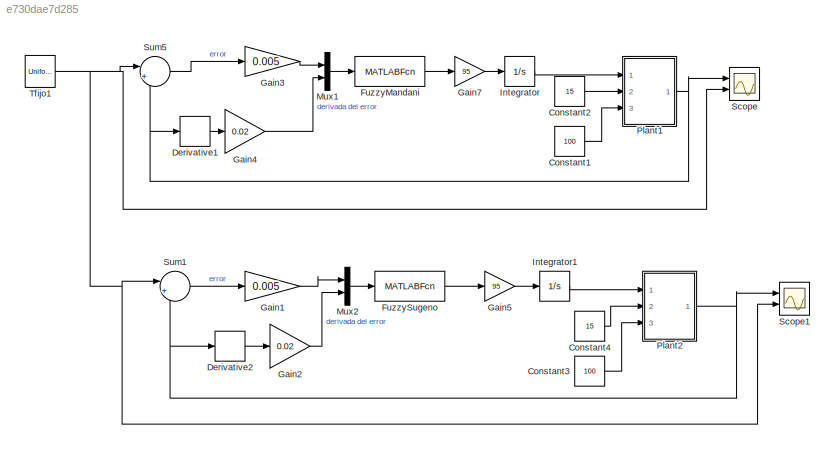
MODEL slx_e730dae7d285
KIND model
CONFIG AbsTol = auto
CONFIG FixedStep = auto
CONFIG MaxStep = auto
CONFIG MinStep = auto
CONFIG RelTol = 1e-3
CONFIG SampleTimeConstraint = Unconstrained
CONFIG Solver = VariableStepAuto
CONFIG SolverMode = Auto
CONFIG SolverName = VariableStepAuto
CONFIG StartTime = 0.0
CONFIG StopTime = 500
BLOCK [Constant] Constant1
  Value = 100
BLOCK [Constant] Constant2
  Value = 15
BLOCK [Constant] Constant3
  Value = 100
BLOCK [Constant] Constant4
  Value = 15
BLOCK [Derivative] Derivative1
BLOCK [Derivative] Derivative2
BLOCK [MATLABFcn] FuzzyMandani
  MATLABFcn = evalfis(u,Bioreactor2FuzzyMadani)
  OutputDimensions = 1
  Ports = [1, 1]
BLOCK [MATLABFcn] FuzzySugeno
  MATLABFcn = evalfis(u,Bioreactor2FuzzySugeno)
  OutputDimensions = 1
  Ports = [1, 1]
BLOCK [Gain] Gain1
  Gain = 0.005
  OutDataTypeStr = Inherit: Inherit via internal rule
  ParamDataTypeStr = Inherit: Inherit via internal rule
  SaturateOnIntegerOverflow = off
BLOCK [Gain] Gain2
  Gain = 0.02
  OutDataTypeStr = Inherit: Inherit via internal rule
  ParamDataTypeStr = Inherit: Inherit via internal rule
  SaturateOnIntegerOverflow = off
BLOCK [Gain] Gain3
  Gain = 0.005
  OutDataTypeStr = Inherit: Inherit via internal rule
  ParamDataTypeStr = Inherit: Inherit via internal rule
  SaturateOnIntegerOverflow = off
BLOCK [Gain] Gain4
  Gain = 0.02
  OutDataTypeStr = Inherit: Inherit via internal rule
  ParamDataTypeStr = Inherit: Inherit via internal rule
  SaturateOnIntegerOverflow = off
BLOCK [Gain] Gain5
  Gain = 95
  OutDataTypeStr = Inherit: Inherit via internal rule
  ParamDataTypeStr = Inherit: Inherit via internal rule
  SaturateOnIntegerOverflow = off
BLOCK [Gain] Gain7
  Gain = 95
  OutDataTypeStr = Inherit: Inherit via internal rule
  ParamDataTypeStr = Inherit: Inherit via internal rule
  SaturateOnIntegerOverflow = off
BLOCK [Integrator] Integrator
  Ports = [1, 1]
BLOCK [Integrator] Integrator1
  Ports = [1, 1]
BLOCK [Mux] Mux1
  DisplayOption = bar
  Inputs = 2
  Ports = [2, 1]
BLOCK [Mux] Mux2
  DisplayOption = bar
  Inputs = 2
  Ports = [2, 1]
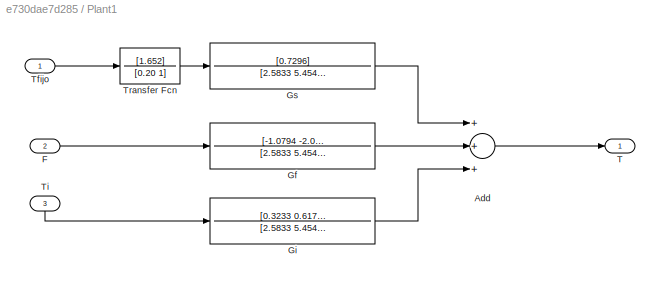
BLOCK [SubSystem] Plant1
  Ports = [3, 1]
  RequestExecContextInheritance = off
  Variant = off
BLOCK [Sum] Plant1/Add
  InputSameDT = off
  Inputs = +++
  OutDataTypeStr = Inherit: Inherit via internal rule
  Ports = [3, 1]
  SaturateOnIntegerOverflow = off
BLOCK [Inport] Plant1/F
  IconDisplay = Port number
  Port = 2
BLOCK [TransferFcn] Plant1/Gf
  Denominator = [2.5833 5.4540 0.6170]
  Numerator = [-1.0794 -2.0600]
BLOCK [TransferFcn] Plant1/Gi
  Denominator = [2.5833 5.4540  0.6170]
  Numerator = [0.3233 0.6170]
BLOCK [TransferFcn] Plant1/Gs
  Denominator = [2.5833 5.4540  0.6170]
  Numerator = [0.7296]
BLOCK [Outport] Plant1/T
  IconDisplay = Port number
BLOCK [Inport] Plant1/Tfijo
  IconDisplay = Port number
BLOCK [Inport] Plant1/Ti
  IconDisplay = Port number
  Port = 3
BLOCK [TransferFcn] Plant1/Transfer Fcn
  Denominator = [0.20 1]
  Numerator = [1.652]
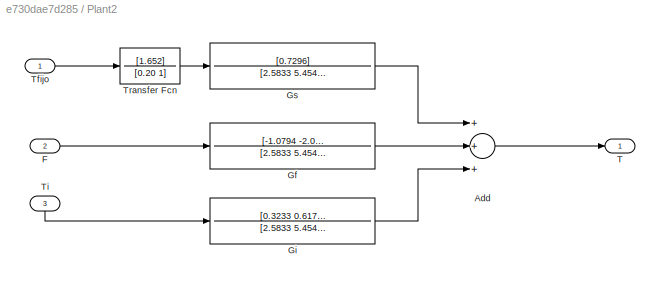
BLOCK [SubSystem] Plant2
  Ports = [3, 1]
  RequestExecContextInheritance = off
  Variant = off
BLOCK [Sum] Plant2/Add
  InputSameDT = off
  Inputs = +++
  OutDataTypeStr = Inherit: Inherit via internal rule
  Ports = [3, 1]
  SaturateOnIntegerOverflow = off
BLOCK [Inport] Plant2/F
  IconDisplay = Port number
  Port = 2
BLOCK [TransferFcn] Plant2/Gf
  Denominator = [2.5833 5.4540 0.6170]
  Numerator = [-1.0794 -2.0600]
BLOCK [TransferFcn] Plant2/Gi
  Denominator = [2.5833 5.4540  0.6170]
  Numerator = [0.3233 0.6170]
BLOCK [TransferFcn] Plant2/Gs
  Denominator = [2.5833 5.4540  0.6170]
  Numerator = [0.7296]
BLOCK [Outport] Plant2/T
  IconDisplay = Port number
BLOCK [Inport] Plant2/Tfijo
  IconDisplay = Port number
BLOCK [Inport] Plant2/Ti
  IconDisplay = Port number
  Port = 3
BLOCK [TransferFcn] Plant2/Transfer Fcn
  Denominator = [0.20 1]
  Numerator = [1.652]
BLOCK [Scope] Scope
  NumInputPorts = 2
  Ports = [2]
  ScopeSpecificationString = Simulink.scopes.TimeScopeBlockCfg('CurrentConfiguration', extmgr.ConfigurationSet(extmgr.Configuration('Core','General UI',true),extmgr.Configuration('Core','Source UI',true),extmgr.Configuration('Sources','WiredSimulink',true,'DataLoggingVariableName','ScopeData1'),extmgr.Configuration('Visuals','Time Domain',true,'SerializedDisplays',{struct('MinYLimReal','-19.64648','MaxYLimReal','176.81834','Y...<+1536ch>
BLOCK [Scope] Scope1
  NumInputPorts = 2
  Ports = [2]
  ScopeSpecificationString = Simulink.scopes.TimeScopeBlockCfg('CurrentConfiguration', extmgr.ConfigurationSet(extmgr.Configuration('Core','General UI',true),extmgr.Configuration('Core','Source UI',true),extmgr.Configuration('Sources','WiredSimulink',true,'DataLoggingVariableName','ScopeData1'),extmgr.Configuration('Visuals','Time Domain',true,'SerializedDisplays',{struct('MinYLimReal','-19.64432','MaxYLimReal','176.79891','Y...<+1454ch>
BLOCK [Sum] Sum1
  IconShape = round
  InputSameDT = off
  Inputs = |+-
  OutDataTypeStr = Inherit: Inherit via internal rule
  Ports = [2, 1]
  SaturateOnIntegerOverflow = off
BLOCK [Sum] Sum5
  IconShape = round
  InputSameDT = off
  Inputs = |+-
  OutDataTypeStr = Inherit: Inherit via internal rule
  Ports = [2, 1]
  SaturateOnIntegerOverflow = off
BLOCK [UniformRandomNumber] Tfijo1
  Maximum = 170
  Minimum = 130
  SampleTime = 50
LINE Constant1:1 -> Plant1:3
LINE Constant2:1 -> Plant1:2
LINE Constant3:1 -> Plant2:3
LINE Constant4:1 -> Plant2:2
LINE Derivative1:1 -> Gain4:1
LINE Derivative2:1 -> Gain2:1
LINE FuzzyMandani:1 -> Gain7:1
LINE FuzzySugeno:1 -> Gain5:1
LINE Gain1:1 -> Mux2:1
LINE Gain2:1 -> Mux2:2
LINE Gain3:1 -> Mux1:1
LINE Gain4:1 -> Mux1:2
LINE Gain5:1 -> Integrator1:1
LINE Gain7:1 -> Integrator:1
LINE Integrator1:1 -> Plant2:1
LINE Integrator:1 -> Plant1:1
LINE Mux1:1 -> FuzzyMandani:1
LINE Mux2:1 -> FuzzySugeno:1
LINE Plant1/Add:1 -> Plant1/T:1
LINE Plant1/F:1 -> Plant1/Gf:1
LINE Plant1/Gf:1 -> Plant1/Add:2
LINE Plant1/Gi:1 -> Plant1/Add:3
LINE Plant1/Gs:1 -> Plant1/Add:1
LINE Plant1/Tfijo:1 -> Plant1/Transfer Fcn:1
LINE Plant1/Ti:1 -> Plant1/Gi:1
LINE Plant1/Transfer Fcn:1 -> Plant1/Gs:1
NET Plant1:1 -> Derivative1:1, Scope:1, Sum5:2
LINE Plant2/Add:1 -> Plant2/T:1
LINE Plant2/F:1 -> Plant2/Gf:1
LINE Plant2/Gf:1 -> Plant2/Add:2
LINE Plant2/Gi:1 -> Plant2/Add:3
LINE Plant2/Gs:1 -> Plant2/Add:1
LINE Plant2/Tfijo:1 -> Plant2/Transfer Fcn:1
LINE Plant2/Ti:1 -> Plant2/Gi:1
LINE Plant2/Transfer Fcn:1 -> Plant2/Gs:1
NET Plant2:1 -> Derivative2:1, Scope1:1, Sum1:2
LINE Sum1:1 -> Gain1:1
LINE Sum5:1 -> Gain3:1
NET Tfijo1:1 -> Scope1:2, Scope:2, Sum1:1, Sum5:1
note: NET lines group one-source signal fan-out (src -> all destinations, sorted); 1:1 wires keep LINE
